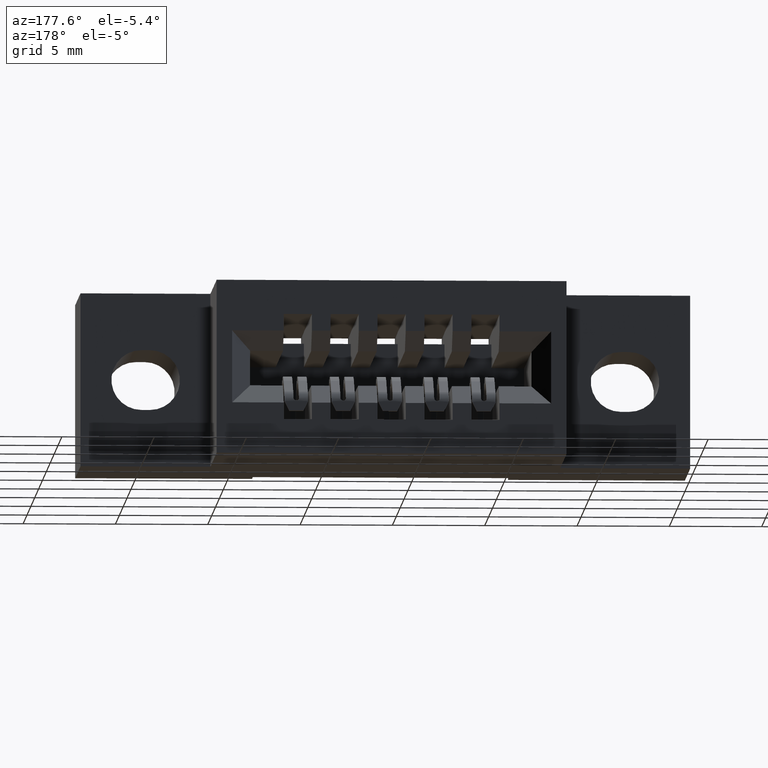
[diagram: clean part render]
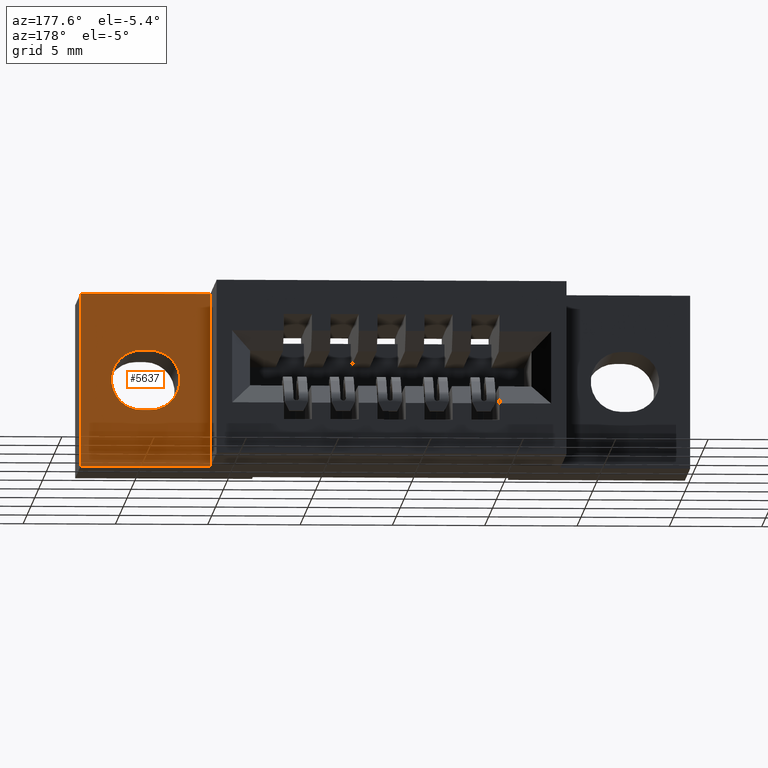
[diagram: same view with one face highlighted and labeled with its STEP entity id]
A machine part, auxiliary view. The second image highlights one B-rep face of the part: STEP entity #5637.
In plain terms, the highlighted planar face has unit normal (0, 1, 0).
Its self-contained STEP definition (entity closure, byte-faithful):
#110 = VECTOR ( 'NONE', #4763, 39.37007874015748100 ) ;
#164 = ORIENTED_EDGE ( 'NONE', *, *, #1146, .T. ) ;
#167 = CARTESIAN_POINT ( 'NONE',  ( 1.022999999999999900, 0.2699999999999999600, -0.3700000000000001100 ) ) ;
#198 = LINE ( 'NONE', #3925, #1819 ) ;
#242 = CARTESIAN_POINT ( 'NONE',  ( 1.022999999999999900, 0.2699999999999999600, -0.3700000000000001100 ) ) ;
#323 = CARTESIAN_POINT ( 'NONE',  ( 1.170000000000000600, 0.2699999999999999600, -0.1209999999999999500 ) ) ;
#408 = LINE ( 'NONE', #242, #6951 ) ;
#480 = EDGE_LOOP ( 'NONE', ( #1807, #4104, #2214, #4271 ) ) ;
#625 = DIRECTION ( 'NONE',  ( 0.0000000000000000000, 0.0000000000000000000, 1.000000000000000000 ) ) ;
#639 = ORIENTED_EDGE ( 'NONE', *, *, #7091, .T. ) ;
#907 = VERTEX_POINT ( 'NONE', #6732 ) ;
#1003 = VERTEX_POINT ( 'NONE', #323 ) ;
#1146 = EDGE_CURVE ( 'NONE', #5981, #6376, #1539, .T. ) ;
#1177 = AXIS2_PLACEMENT_3D ( 'NONE', #1207, #4281, #625 ) ;
#1207 = CARTESIAN_POINT ( 'NONE',  ( 1.022999999999999900, 0.2699999999999999600, -0.3700000000000001100 ) ) ;
#1303 = CARTESIAN_POINT ( 'NONE',  ( 1.152000000000000800, 0.2699999999999999600, -0.1850000000000000000 ) ) ;
#1329 = DIRECTION ( 'NONE',  ( 1.000000000000000000, -0.0000000000000000000, 3.910469652873048400E-016 ) ) ;
#1539 = LINE ( 'NONE', #5866, #7886 ) ;
#1581 = EDGE_CURVE ( 'NONE', #907, #6739, #6683, .T. ) ;
#1705 = DIRECTION ( 'NONE',  ( 0.0000000000000000000, 1.000000000000000000, -0.0000000000000000000 ) ) ;
#1733 = CARTESIAN_POINT ( 'NONE',  ( 1.151999999999999900, 0.2699999999999999600, -0.2489999999999996700 ) ) ;
#1807 = ORIENTED_EDGE ( 'NONE', *, *, #3725, .F. ) ;
#1819 = VECTOR ( 'NONE', #7029, 39.37007874015748100 ) ;
#1846 = CARTESIAN_POINT ( 'NONE',  ( 1.300000000000000000, 0.2699999999999999600, 0.0000000000000000000 ) ) ;
#1856 = ORIENTED_EDGE ( 'NONE', *, *, #7078, .T. ) ;
#1997 = LINE ( 'NONE', #2186, #6605 ) ;
#2092 = CIRCLE ( 'NONE', #6713, 0.06399999999999984900 ) ;
#2186 = CARTESIAN_POINT ( 'NONE',  ( 1.170000000000000600, 0.2699999999999999600, -0.1209999999999999500 ) ) ;
#2214 = ORIENTED_EDGE ( 'NONE', *, *, #3159, .F. ) ;
#2375 = PLANE ( 'NONE',  #1177 ) ;
#2387 = DIRECTION ( 'NONE',  ( 1.000000000000000000, -0.0000000000000000000, -0.0000000000000000000 ) ) ;
#2882 = VERTEX_POINT ( 'NONE', #167 ) ;
#3159 = EDGE_CURVE ( 'NONE', #6739, #7025, #6414, .T. ) ;
#3284 = CARTESIAN_POINT ( 'NONE',  ( 1.023000000000000100, 0.2699999999999999600, -1.083200093845834000E-016 ) ) ;
#3610 = ORIENTED_EDGE ( 'NONE', *, *, #3850, .T. ) ;
#3725 = EDGE_CURVE ( 'NONE', #1003, #907, #2092, .T. ) ;
#3804 = CARTESIAN_POINT ( 'NONE',  ( 1.300000000000000000, 0.2699999999999999600, -0.3700000000000000000 ) ) ;
#3842 = CARTESIAN_POINT ( 'NONE',  ( 1.151999999999999900, 0.2699999999999999600, -0.1210000000000001600 ) ) ;
#3850 = EDGE_CURVE ( 'NONE', #6376, #5810, #7703, .T. ) ;
#3902 = DIRECTION ( 'NONE',  ( 3.691686477924680500E-016, 0.0000000000000000000, 1.000000000000000000 ) ) ;
#3925 = CARTESIAN_POINT ( 'NONE',  ( 1.300000000000000000, 0.2699999999999999600, -0.3700000000000000000 ) ) ;
#4104 = ORIENTED_EDGE ( 'NONE', *, *, #4729, .F. ) ;
#4271 = ORIENTED_EDGE ( 'NONE', *, *, #1581, .F. ) ;
#4281 = DIRECTION ( 'NONE',  ( 0.0000000000000000000, 1.000000000000000000, -0.0000000000000000000 ) ) ;
#4418 = DIRECTION ( 'NONE',  ( -0.0000000000000000000, -0.0000000000000000000, -1.000000000000000000 ) ) ;
#4494 = CARTESIAN_POINT ( 'NONE',  ( 1.300000000000000000, 0.2699999999999999600, -0.3700000000000000000 ) ) ;
#4649 = FACE_BOUND ( 'NONE', #480, .T. ) ;
#4654 = DIRECTION ( 'NONE',  ( 0.0000000000000000000, 0.0000000000000000000, -1.000000000000000000 ) ) ;
#4729 = EDGE_CURVE ( 'NONE', #7025, #1003, #1997, .T. ) ;
#4763 = DIRECTION ( 'NONE',  ( -1.000000000000000000, 0.0000000000000000000, 0.0000000000000000000 ) ) ;
#4971 = EDGE_LOOP ( 'NONE', ( #639, #1856, #164, #3610 ) ) ;
#5587 = DIRECTION ( 'NONE',  ( 0.0000000000000000000, 0.0000000000000000000, -1.000000000000000000 ) ) ;
#5637 = ADVANCED_FACE ( 'NONE', ( #4649, #6127 ), #2375, .T. ) ;
#5810 = VERTEX_POINT ( 'NONE', #3804 ) ;
#5866 = CARTESIAN_POINT ( 'NONE',  ( 1.300000000000000000, 0.2699999999999999600, 0.0000000000000000000 ) ) ;
#5981 = VERTEX_POINT ( 'NONE', #3284 ) ;
#6127 = FACE_OUTER_BOUND ( 'NONE', #4971, .T. ) ;
#6303 = VECTOR ( 'NONE', #4418, 39.37007874015748100 ) ;
#6376 = VERTEX_POINT ( 'NONE', #1846 ) ;
#6414 = CIRCLE ( 'NONE', #6891, 0.06399999999999984900 ) ;
#6532 = CARTESIAN_POINT ( 'NONE',  ( 1.170000000000000600, 0.2699999999999999600, -0.2489999999999996700 ) ) ;
#6605 = VECTOR ( 'NONE', #2387, 39.37007874015748100 ) ;
#6647 = DIRECTION ( 'NONE',  ( 0.0000000000000000000, 1.000000000000000000, -0.0000000000000000000 ) ) ;
#6683 = LINE ( 'NONE', #6532, #110 ) ;
#6713 = AXIS2_PLACEMENT_3D ( 'NONE', #7000, #6647, #5587 ) ;
#6732 = CARTESIAN_POINT ( 'NONE',  ( 1.170000000000000600, 0.2699999999999999600, -0.2489999999999996700 ) ) ;
#6739 = VERTEX_POINT ( 'NONE', #1733 ) ;
#6891 = AXIS2_PLACEMENT_3D ( 'NONE', #1303, #1705, #4654 ) ;
#6951 = VECTOR ( 'NONE', #3902, 39.37007874015748100 ) ;
#7000 = CARTESIAN_POINT ( 'NONE',  ( 1.170000000000000600, 0.2699999999999999600, -0.1850000000000000000 ) ) ;
#7025 = VERTEX_POINT ( 'NONE', #3842 ) ;
#7029 = DIRECTION ( 'NONE',  ( -1.000000000000000000, 0.0000000000000000000, -2.465566781285435800E-016 ) ) ;
#7078 = EDGE_CURVE ( 'NONE', #2882, #5981, #408, .T. ) ;
#7091 = EDGE_CURVE ( 'NONE', #5810, #2882, #198, .T. ) ;
#7703 = LINE ( 'NONE', #4494, #6303 ) ;
#7886 = VECTOR ( 'NONE', #1329, 39.37007874015748100 ) ;